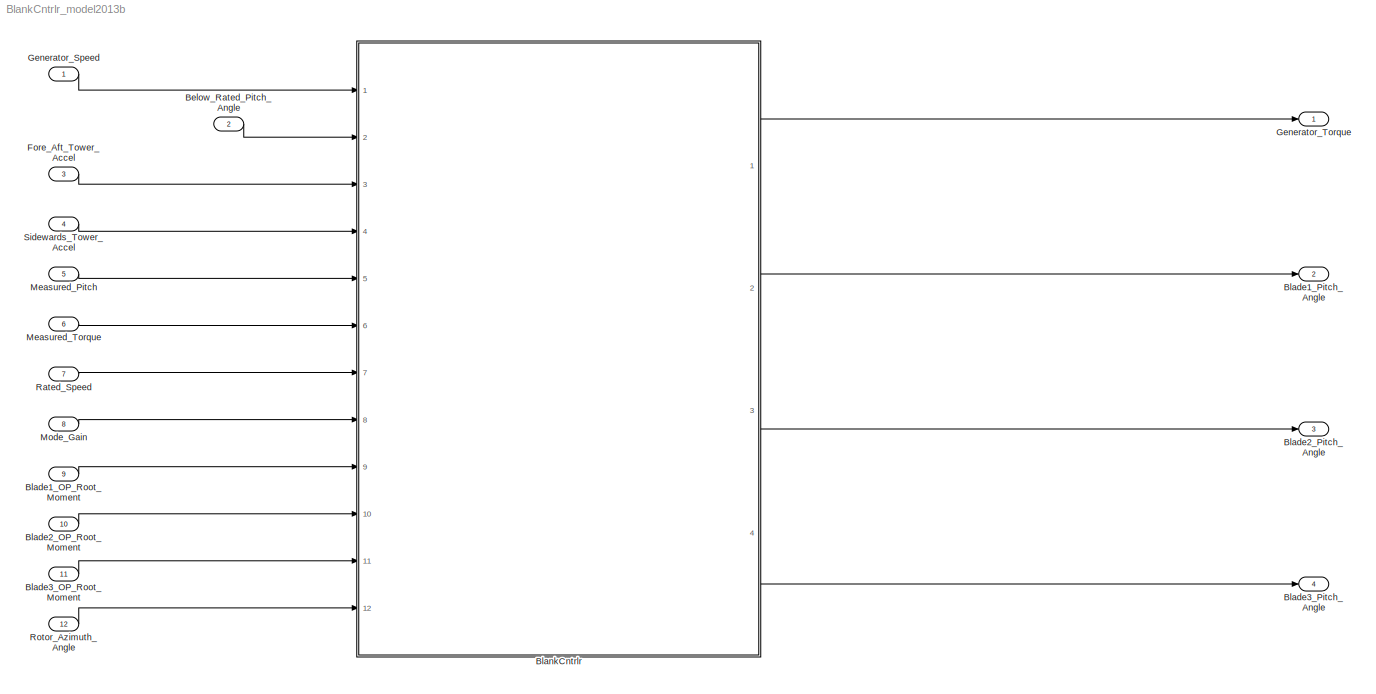
MODEL BlankCntrlr_model2013b
KIND model
BLOCK [Inport] Below_Rated_Pitch_Angle
  IconDisplay = Port number
  Port = 2
  PortDimensions = 1
  SID = 2
  SignalType = real
BLOCK [Inport] Blade1_OP_Root_Moment
  IconDisplay = Port number
  Port = 9
  PortDimensions = 1
  SID = 80
  SignalType = real
  VarSizeSig = No
BLOCK [Outport] Blade1_Pitch_Angle
  IconDisplay = Port number
  Port = 2
  PortDimensions = 1
  SID = 173
  SignalType = real
  VarSizeSig = No
BLOCK [Inport] Blade2_OP_Root_Moment
  IconDisplay = Port number
  Port = 10
  PortDimensions = 1
  SID = 81
  SignalType = real
  VarSizeSig = No
BLOCK [Outport] Blade2_Pitch_Angle
  IconDisplay = Port number
  Port = 3
  PortDimensions = 1
  SID = 174
  SignalType = real
  VarSizeSig = No
BLOCK [Inport] Blade3_OP_Root_Moment
  IconDisplay = Port number
  Port = 11
  PortDimensions = 1
  SID = 82
  SignalType = real
  VarSizeSig = No
BLOCK [Outport] Blade3_Pitch_Angle
  IconDisplay = Port number
  Port = 4
  PortDimensions = 1
  SID = 175
  SignalType = real
  VarSizeSig = No
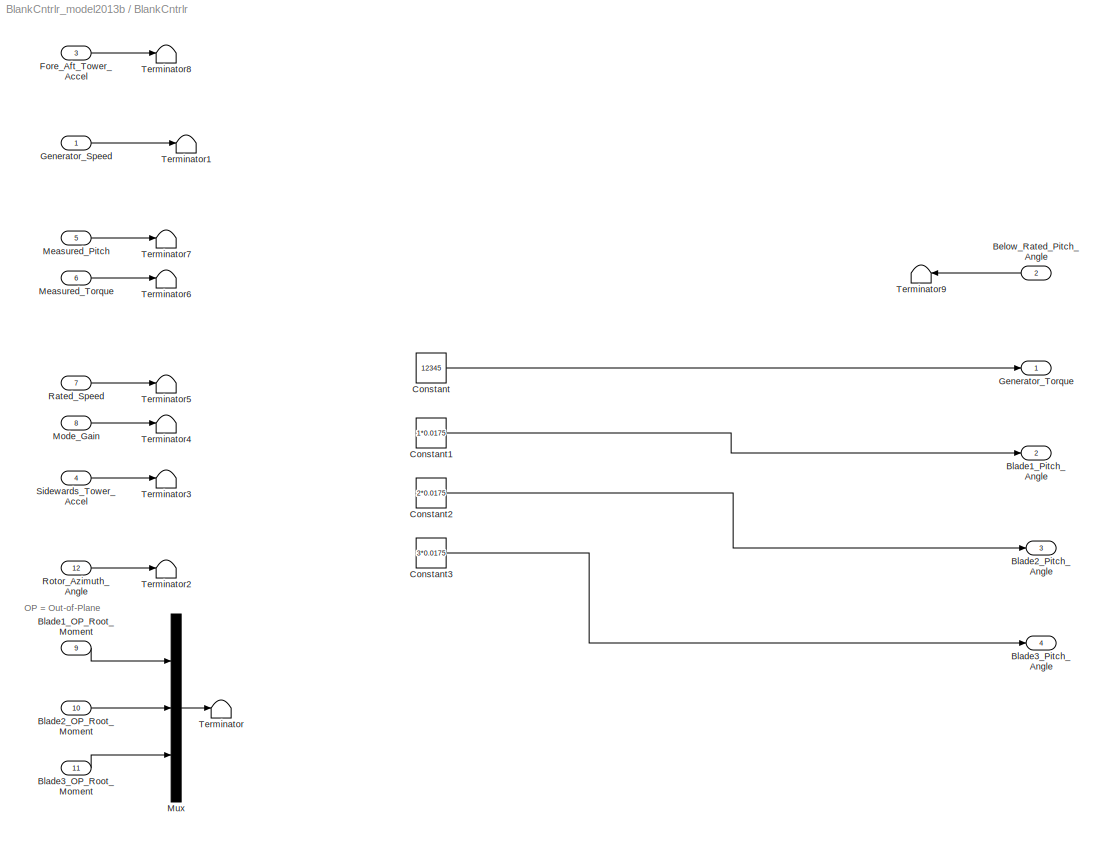
BLOCK [SubSystem] BlankCntrlr
  InitFcn = %LoadBUCkeyrootparams\n%LoadBUCparams\n%LoadBUCscript
  Ports = [12, 4]
  RequestExecContextInheritance = off
  SID = 1259
  Variant = off
BLOCK [Inport] BlankCntrlr/Below_Rated_Pitch_Angle
  IconDisplay = Port number
  Port = 2
  PortDimensions = 1
  SID = 1261
  SignalType = real
BLOCK [Inport] BlankCntrlr/Blade1_OP_Root_Moment
  IconDisplay = Port number
  Port = 9
  PortDimensions = 1
  SID = 1268
  SignalType = real
  VarSizeSig = No
BLOCK [Outport] BlankCntrlr/Blade1_Pitch_Angle
  IconDisplay = Port number
  Port = 2
  PortDimensions = 1
  SID = 1273
  SignalType = real
  VarSizeSig = No
BLOCK [Inport] BlankCntrlr/Blade2_OP_Root_Moment
  IconDisplay = Port number
  Port = 10
  PortDimensions = 1
  SID = 1269
  SignalType = real
  VarSizeSig = No
BLOCK [Outport] BlankCntrlr/Blade2_Pitch_Angle
  IconDisplay = Port number
  Port = 3
  PortDimensions = 1
  SID = 1274
  SignalType = real
  VarSizeSig = No
BLOCK [Inport] BlankCntrlr/Blade3_OP_Root_Moment
  IconDisplay = Port number
  Port = 11
  PortDimensions = 1
  SID = 1270
  SignalType = real
  VarSizeSig = No
BLOCK [Outport] BlankCntrlr/Blade3_Pitch_Angle
  IconDisplay = Port number
  Port = 4
  PortDimensions = 1
  SID = 1275
  SignalType = real
  VarSizeSig = No
BLOCK [Constant] BlankCntrlr/Constant
  SID = 5756
  Value = 12345
BLOCK [Constant] BlankCntrlr/Constant1
  SID = 5758
  Value = 1*0.0175
BLOCK [Constant] BlankCntrlr/Constant2
  SID = 5759
  Value = 2*0.0175
BLOCK [Constant] BlankCntrlr/Constant3
  SID = 5760
  Value = 3*0.0175
BLOCK [Inport] BlankCntrlr/Fore_Aft_Tower_Accel
  IconDisplay = Port number
  Port = 3
  PortDimensions = 1
  SID = 1262
  SignalType = real
BLOCK [Inport] BlankCntrlr/Generator_Speed
  IconDisplay = Port number
  PortDimensions = 1
  SID = 1260
  SignalType = real
BLOCK [Outport] BlankCntrlr/Generator_Torque
  IconDisplay = Port number
  PortDimensions = 1
  SID = 1272
  SignalType = real
BLOCK [Inport] BlankCntrlr/Measured_Pitch
  IconDisplay = Port number
  Port = 5
  PortDimensions = 1
  SID = 1264
  SignalType = real
BLOCK [Inport] BlankCntrlr/Measured_Torque
  IconDisplay = Port number
  Port = 6
  PortDimensions = 1
  SID = 1265
  SignalType = real
BLOCK [Inport] BlankCntrlr/Mode_Gain
  IconDisplay = Port number
  Port = 8
  PortDimensions = 1
  SID = 1267
  SignalType = real
BLOCK [Mux] BlankCntrlr/Mux
  DisplayOption = bar
  Inputs = 3
  Ports = [3, 1]
  SID = 83
BLOCK [Inport] BlankCntrlr/Rated_Speed
  IconDisplay = Port number
  Port = 7
  PortDimensions = 1
  SID = 1266
  SignalType = real
BLOCK [Inport] BlankCntrlr/Rotor_Azimuth_Angle
  IconDisplay = Port number
  Port = 12
  PortDimensions = 1
  SID = 1271
  SignalType = real
  VarSizeSig = No
BLOCK [Inport] BlankCntrlr/Sidewards_Tower_Accel
  IconDisplay = Port number
  Port = 4
  PortDimensions = 1
  SID = 1263
  SignalType = real
BLOCK [Terminator] BlankCntrlr/Terminator
  SID = 1183
BLOCK [Terminator] BlankCntrlr/Terminator1
  SID = 5755
BLOCK [Terminator] BlankCntrlr/Terminator2
  SID = 1188
BLOCK [Terminator] BlankCntrlr/Terminator3
  SID = 1189
BLOCK [Terminator] BlankCntrlr/Terminator4
  SID = 1190
BLOCK [Terminator] BlankCntrlr/Terminator5
  SID = 1191
BLOCK [Terminator] BlankCntrlr/Terminator6
  SID = 1192
BLOCK [Terminator] BlankCntrlr/Terminator7
  SID = 3288
BLOCK [Terminator] BlankCntrlr/Terminator8
  SID = 1194
BLOCK [Terminator] BlankCntrlr/Terminator9
  SID = 5757
BLOCK [Inport] Fore_Aft_Tower_Accel
  IconDisplay = Port number
  Port = 3
  PortDimensions = 1
  SID = 3
  SignalType = real
BLOCK [Inport] Generator_Speed
  IconDisplay = Port number
  PortDimensions = 1
  SID = 1
  SignalType = real
BLOCK [Outport] Generator_Torque
  IconDisplay = Port number
  PortDimensions = 1
  SID = 78
  SignalType = real
BLOCK [Inport] Measured_Pitch
  IconDisplay = Port number
  Port = 5
  PortDimensions = 1
  SID = 5
  SignalType = real
BLOCK [Inport] Measured_Torque
  IconDisplay = Port number
  Port = 6
  PortDimensions = 1
  SID = 6
  SignalType = real
BLOCK [Inport] Mode_Gain
  IconDisplay = Port number
  Port = 8
  PortDimensions = 1
  SID = 8
  SignalType = real
BLOCK [Inport] Rated_Speed
  IconDisplay = Port number
  Port = 7
  PortDimensions = 1
  SID = 7
  SignalType = real
BLOCK [Inport] Rotor_Azimuth_Angle
  IconDisplay = Port number
  Port = 12
  PortDimensions = 1
  SID = 189
  SignalType = real
  VarSizeSig = No
BLOCK [Inport] Sidewards_Tower_Accel
  IconDisplay = Port number
  Port = 4
  PortDimensions = 1
  SID = 4
  SignalType = real
ANNOTATION BlankCntrlr: OP = Out-of-Plane
LINE Below_Rated_Pitch_Angle:1 -> BlankCntrlr:2
LINE Blade1_OP_Root_Moment:1 -> BlankCntrlr:9
LINE Blade2_OP_Root_Moment:1 -> BlankCntrlr:10
LINE Blade3_OP_Root_Moment:1 -> BlankCntrlr:11
LINE BlankCntrlr/Below_Rated_Pitch_Angle:1 -> BlankCntrlr/Terminator9:1
LINE BlankCntrlr/Blade1_OP_Root_Moment:1 -> BlankCntrlr/Mux:1
LINE BlankCntrlr/Blade2_OP_Root_Moment:1 -> BlankCntrlr/Mux:2
LINE BlankCntrlr/Blade3_OP_Root_Moment:1 -> BlankCntrlr/Mux:3
LINE BlankCntrlr/Constant1:1 -> BlankCntrlr/Blade1_Pitch_Angle:1
LINE BlankCntrlr/Constant2:1 -> BlankCntrlr/Blade2_Pitch_Angle:1
LINE BlankCntrlr/Constant3:1 -> BlankCntrlr/Blade3_Pitch_Angle:1
LINE BlankCntrlr/Constant:1 -> BlankCntrlr/Generator_Torque:1
LINE BlankCntrlr/Fore_Aft_Tower_Accel:1 -> BlankCntrlr/Terminator8:1
LINE BlankCntrlr/Generator_Speed:1 -> BlankCntrlr/Terminator1:1
LINE BlankCntrlr/Measured_Pitch:1 -> BlankCntrlr/Terminator7:1
LINE BlankCntrlr/Measured_Torque:1 -> BlankCntrlr/Terminator6:1
LINE BlankCntrlr/Mode_Gain:1 -> BlankCntrlr/Terminator4:1
LINE BlankCntrlr/Mux:1 -> BlankCntrlr/Terminator:1
LINE BlankCntrlr/Rated_Speed:1 -> BlankCntrlr/Terminator5:1
LINE BlankCntrlr/Rotor_Azimuth_Angle:1 -> BlankCntrlr/Terminator2:1
LINE BlankCntrlr/Sidewards_Tower_Accel:1 -> BlankCntrlr/Terminator3:1
LINE BlankCntrlr:1 -> Generator_Torque:1
LINE BlankCntrlr:2 -> Blade1_Pitch_Angle:1
LINE BlankCntrlr:3 -> Blade2_Pitch_Angle:1
LINE BlankCntrlr:4 -> Blade3_Pitch_Angle:1
LINE Fore_Aft_Tower_Accel:1 -> BlankCntrlr:3
LINE Generator_Speed:1 -> BlankCntrlr:1
LINE Measured_Pitch:1 -> BlankCntrlr:5
LINE Measured_Torque:1 -> BlankCntrlr:6
LINE Mode_Gain:1 -> BlankCntrlr:8
LINE Rated_Speed:1 -> BlankCntrlr:7
LINE Rotor_Azimuth_Angle:1 -> BlankCntrlr:12
LINE Sidewards_Tower_Accel:1 -> BlankCntrlr:4
